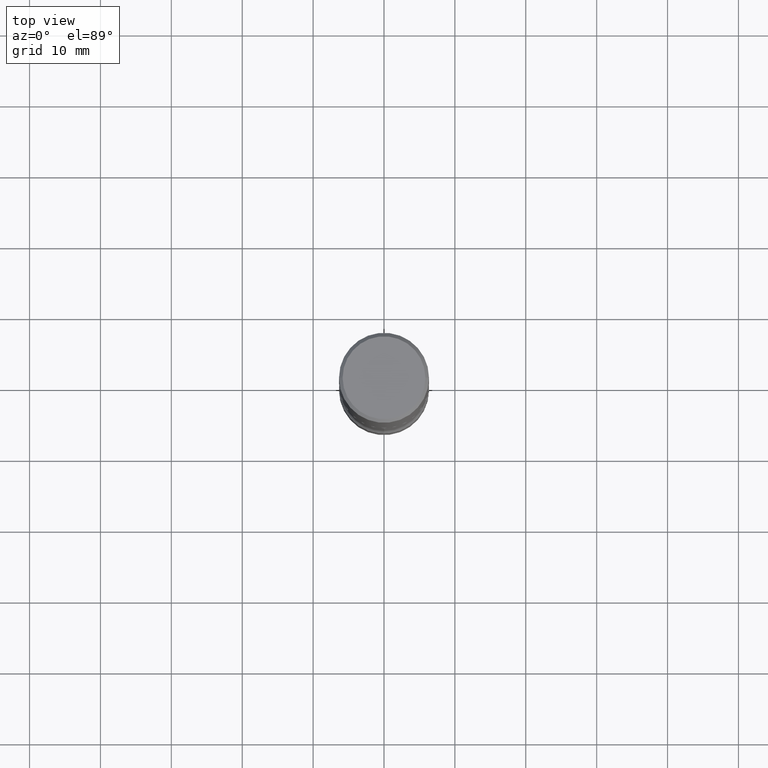
[diagram: clean part render]
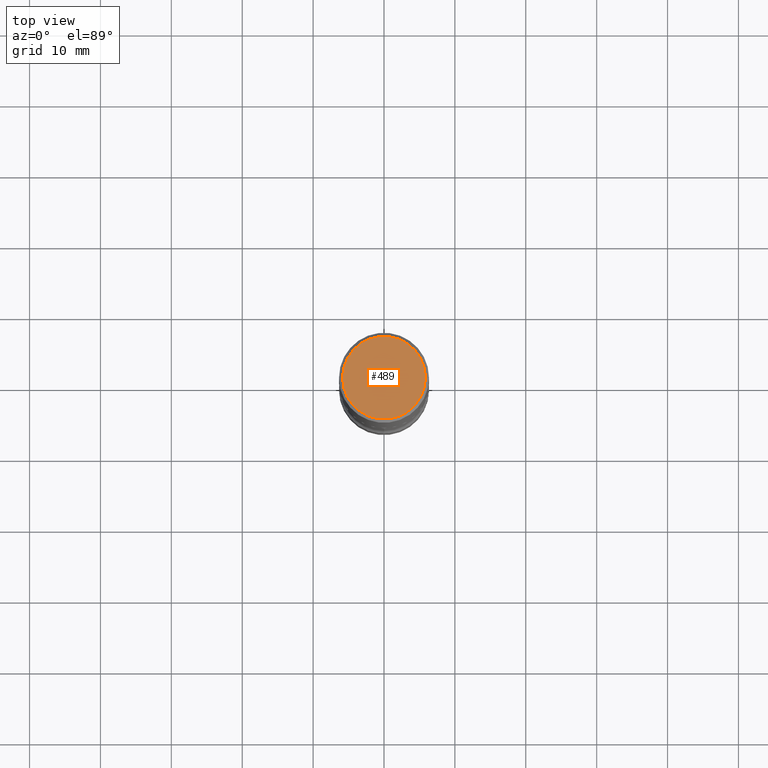
[diagram: same view with one face highlighted and labeled with its STEP entity id]
A machine part, top view. The second image highlights one B-rep face of the part: STEP entity #489.
In plain terms, the highlighted planar face has unit normal (0, -0, -1).
Its self-contained STEP definition (entity closure, byte-faithful):
#5 = AXIS2_PLACEMENT_3D ( 'NONE', #47, #439, #87 ) ;
#12 = FACE_OUTER_BOUND ( 'NONE', #306, .T. ) ;
#23 = ORIENTED_EDGE ( 'NONE', *, *, #57, .T. ) ;
#47 = CARTESIAN_POINT ( 'NONE',  ( 1.606081415867838306E-15, 0.2299999999999995937, -7.966379391987714714E-16 ) ) ;
#48 = VERTEX_POINT ( 'NONE', #410 ) ;
#57 = EDGE_CURVE ( 'NONE', #105, #48, #453, .T. ) ;
#65 = AXIS2_PLACEMENT_3D ( 'NONE', #548, #114, #417 ) ;
#87 = DIRECTION ( 'NONE',  ( -1.000000000000000000, 6.982962677686265922E-15, -4.876176775795935793E-29 ) ) ;
#105 = VERTEX_POINT ( 'NONE', #405 ) ;
#106 = DIRECTION ( 'NONE',  ( 1.000000000000000000, -6.982962677686266711E-15, 4.875813741439108182E-29 ) ) ;
#114 = DIRECTION ( 'NONE',  ( -2.445468806185136597E-29, 3.491481338843145583E-15, 1.000000000000000000 ) ) ;
#177 = CARTESIAN_POINT ( 'NONE',  ( -3.131554243005659264E-46, 4.471029511141341874E-32, 1.280553747030123384E-17 ) ) ;
#248 = CIRCLE ( 'NONE', #65, 0.2299999999999995937 ) ;
#306 = EDGE_LOOP ( 'NONE', ( #23, #468 ) ) ;
#367 = EDGE_CURVE ( 'NONE', #48, #105, #248, .T. ) ;
#405 = CARTESIAN_POINT ( 'NONE',  ( -0.2299999999999995937, 1.640996229256269758E-15, 1.280553747028987855E-17 ) ) ;
#410 = CARTESIAN_POINT ( 'NONE',  ( 0.2299999999999995937, -1.681434332853596250E-15, 1.280553747031272933E-17 ) ) ;
#417 = DIRECTION ( 'NONE',  ( 1.000000000000000000, -6.982962677686266711E-15, 4.875813741439108182E-29 ) ) ;
#439 = DIRECTION ( 'NONE',  ( 2.438088387897960049E-29, -3.491481338843145188E-15, -1.000000000000000000 ) ) ;
#453 = CIRCLE ( 'NONE', #554, 0.2299999999999995937 ) ;
#468 = ORIENTED_EDGE ( 'NONE', *, *, #367, .T. ) ;
#489 = ADVANCED_FACE ( 'NONE', ( #12 ), #530, .F. ) ;
#530 = PLANE ( 'NONE',  #5 ) ;
#537 = DIRECTION ( 'NONE',  ( -2.445468806185136597E-29, 3.491481338843145583E-15, 1.000000000000000000 ) ) ;
#548 = CARTESIAN_POINT ( 'NONE',  ( -3.131554243005659264E-46, 4.471029511141341874E-32, 1.280553747030123384E-17 ) ) ;
#554 = AXIS2_PLACEMENT_3D ( 'NONE', #177, #537, #106 ) ;